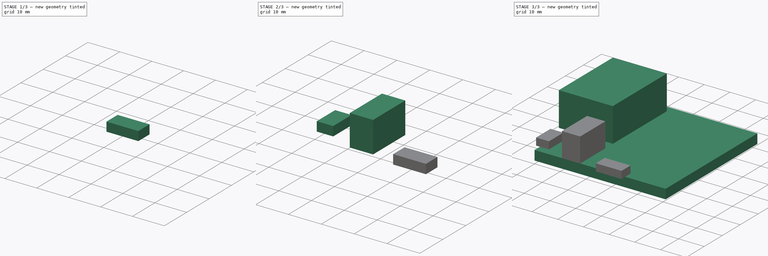
[diagram: build sequence overview — one tinted view per stage of 3, left to right]
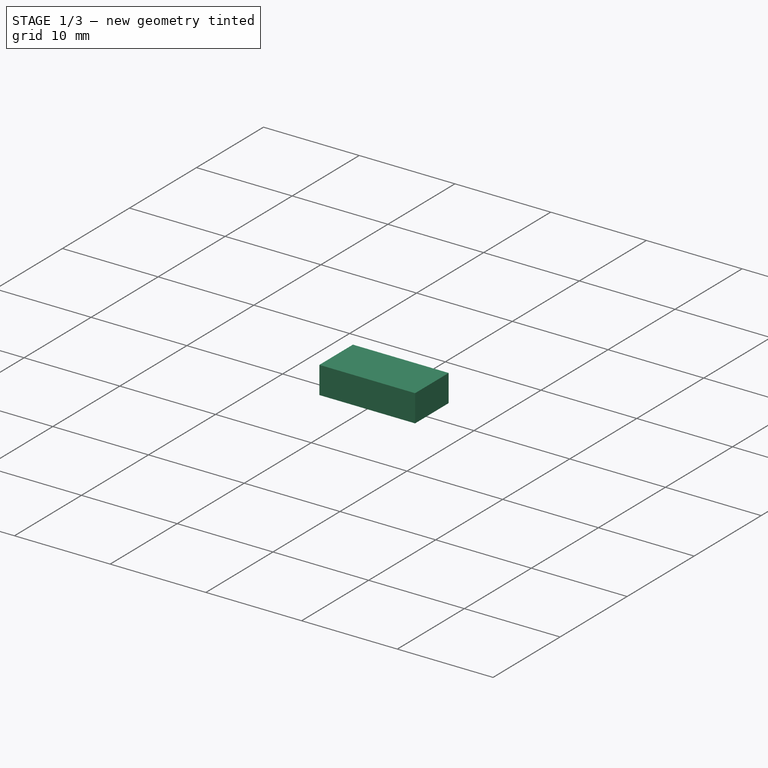
[diagram: stage 1 of 3 — iso view after this stage's code; geometry added in this stage tinted green]
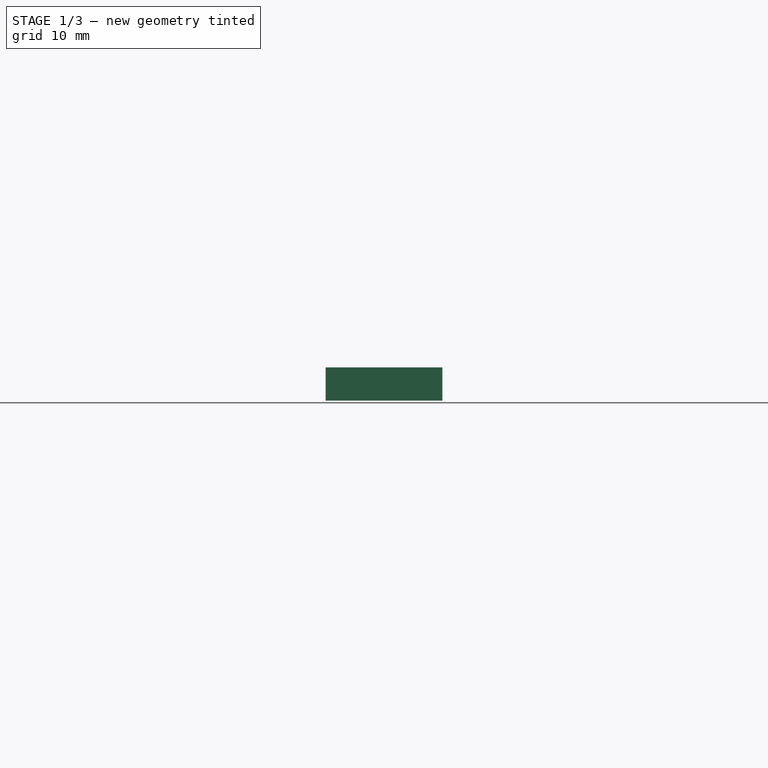
[diagram: stage 1 of 3 — front view after this stage's code; geometry added in this stage tinted green]
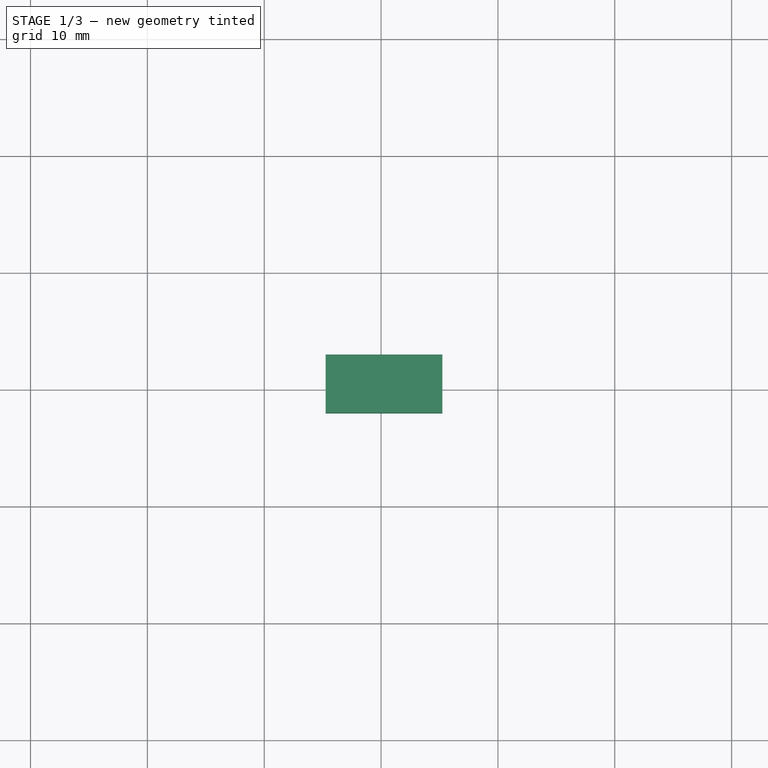
[diagram: stage 1 of 3 — top view after this stage's code; geometry added in this stage tinted green]
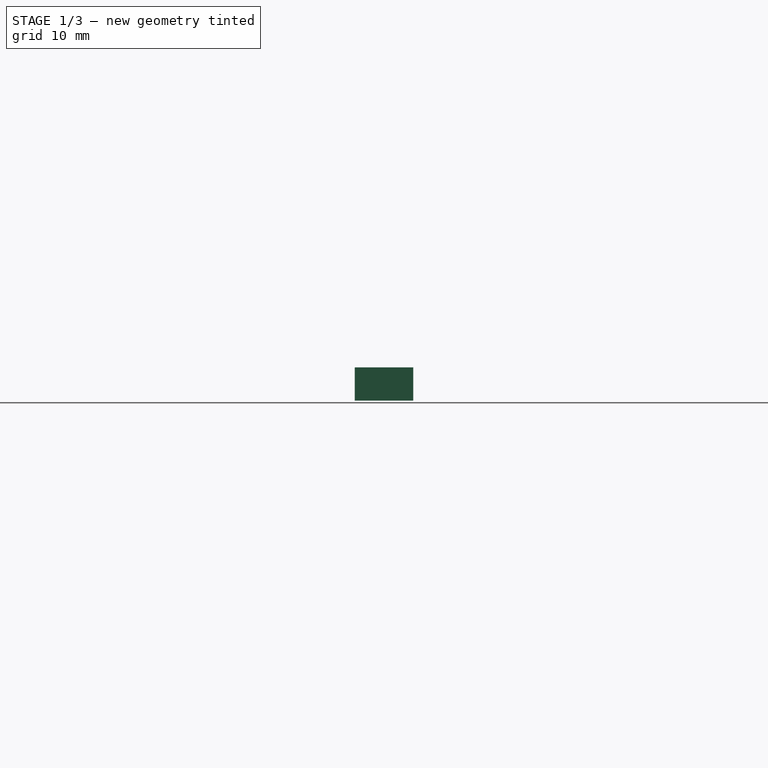
[diagram: stage 1 of 3 — right view after this stage's code; geometry added in this stage tinted green]
FCSTD DOCUMENT  (FreeCAD 0.16RUnknown)
Label: gl-ar150_pcb
License: All rights reserved
LicenseURL: http://en.wikipedia.org/wiki/All_rights_reserved
objects: Sketcher::SketchObject×5, Part::Extrusion×5, Part::MultiFuse×1
note: 11 computed .brp shape members not serialized (recipe doc carries the construction recipe); baked Part::Feature solids carry a one-line shape summary decoded from their .brp

FEATURE [Sketcher::SketchObject] Sketch
  sketch-geometry (4):
    g0: LineSegment StartX=0 StartY=0 StartZ=0 EndX=51 EndY=0 EndZ=0
    g1: LineSegment StartX=51 StartY=0 StartZ=0 EndX=51 EndY=51 EndZ=0
    g2: LineSegment StartX=51 StartY=51 StartZ=0 EndX=0 EndY=51 EndZ=0
    g3: LineSegment StartX=0 StartY=51 StartZ=0 EndX=0 EndY=0 EndZ=0
  constraints (11):
    c: Coincident(g0,g1)
    c: Coincident(g1,g2)
    c: Coincident(g2,g3)
    c: Coincident(g3,g0)
    c: Horizontal(g0)
    c: Horizontal(g2)
    c: Vertical(g1)
    c: Vertical(g3)
    c: Coincident(g0,g-1)
    c: DistanceX(g0,g0) = 51
    c: DistanceY(g3,g3) = 51
FEATURE [Part::Extrusion] Extrude
  Base = -> Sketch
  Dir = (0,0,-3.71)
  Solid = true
FEATURE [Sketcher::SketchObject] Sketch004
  ExternalGeometry = -> [Extrude]
  Support = -> Extrude [Face5]
  sketch-geometry (6):
    g0: LineSegment StartX=25.25 StartY=-2 StartZ=0 EndX=35.25 EndY=-2 EndZ=0
    g1: LineSegment StartX=35.25 StartY=-2 StartZ=0 EndX=35.25 EndY=3 EndZ=0
    g2: LineSegment StartX=35.25 StartY=3 StartZ=0 EndX=25.25 EndY=3 EndZ=0
    g3: LineSegment StartX=25.25 StartY=3 StartZ=0 EndX=25.25 EndY=-2 EndZ=0
    g4: LineSegment [constr] StartX=25.25 StartY=-2 StartZ=0 EndX=25.25 EndY=0 EndZ=0
    g5: LineSegment [constr] StartX=51 StartY=0 StartZ=0 EndX=35.25 EndY=0 EndZ=0
  constraints (18):
    c: Coincident(g0,g1)
    c: Coincident(g1,g2)
    c: Coincident(g2,g3)
    c: Coincident(g3,g0)
    c: Horizontal(g0)
    c: Horizontal(g2)
    c: Vertical(g1)
    c: Vertical(g3)
    c: Coincident(g4,g0)
    c: PointOnObject(g4,g-1)
    c: DistanceY(g4,g4) = 2
    c: Vertical(g4)
    c: DistanceX(g0,g0) = 10
    c: DistanceY(g3,g3) = 5
    c: Coincident(g5,g-3)
    c: PointOnObject(g5,g1)
    c: Horizontal(g5)
    c: DistanceX(g5,g5) = 15.75
FEATURE [Part::Extrusion] Extrude004
  Base = -> Sketch004
  Dir = (0,0,2.85)
  Solid = true
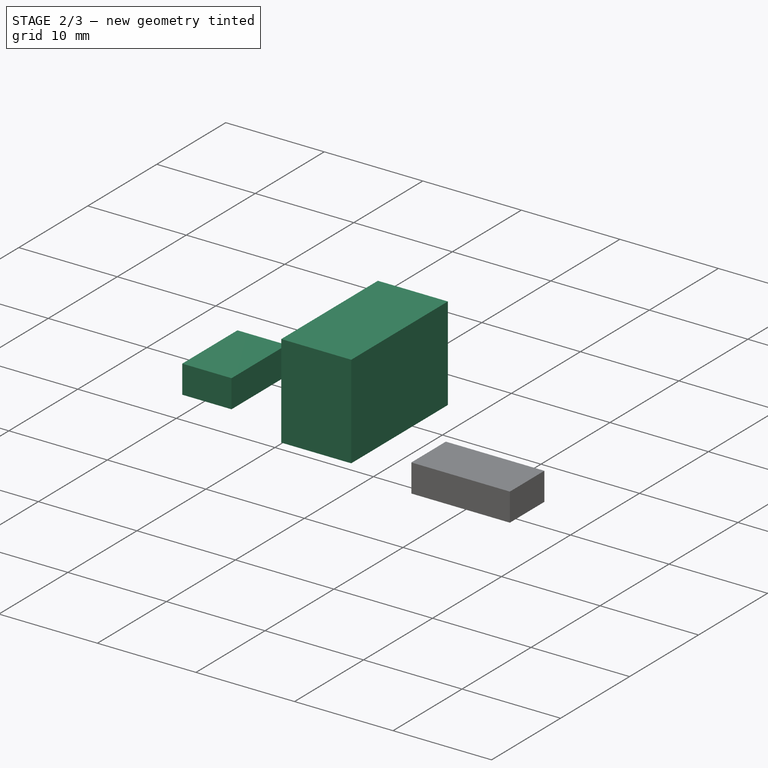
[diagram: stage 2 of 3 — iso view after this stage's code; geometry added in this stage tinted green]
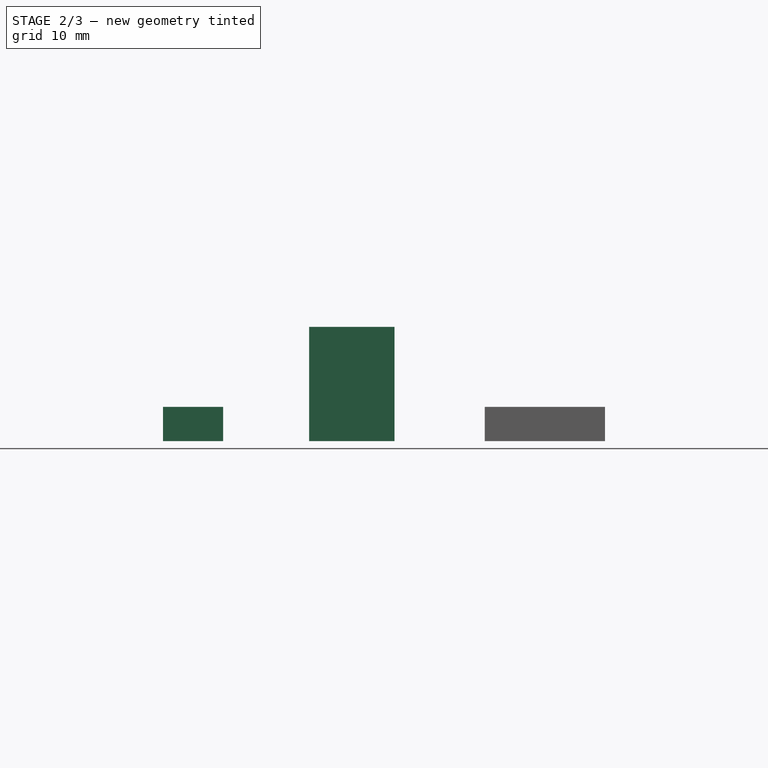
[diagram: stage 2 of 3 — front view after this stage's code; geometry added in this stage tinted green]
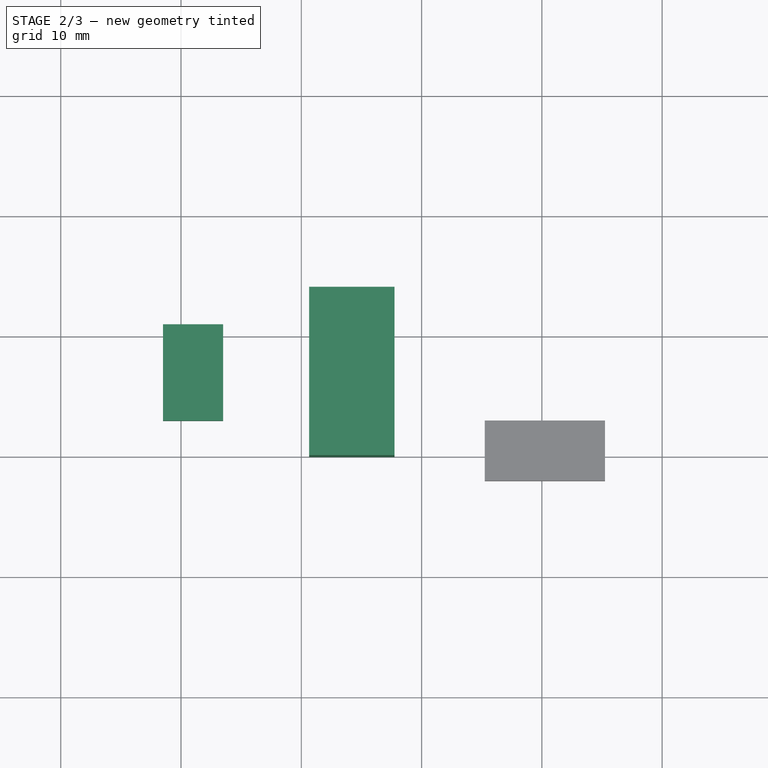
[diagram: stage 2 of 3 — top view after this stage's code; geometry added in this stage tinted green]
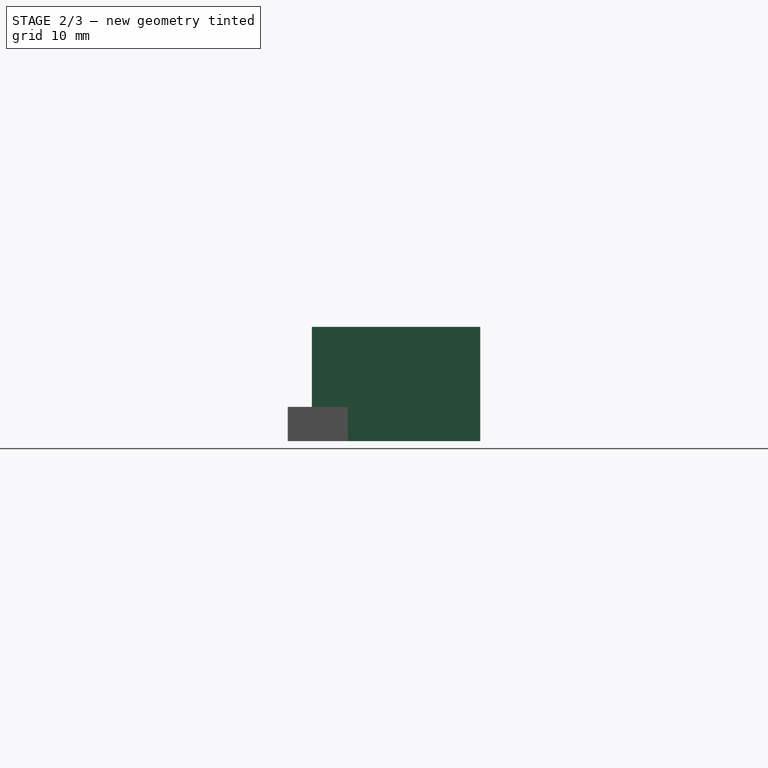
[diagram: stage 2 of 3 — right view after this stage's code; geometry added in this stage tinted green]
FEATURE [Sketcher::SketchObject] Sketch002
  Support = -> Extrude [Face5]
  sketch-geometry (6):
    g0: LineSegment StartX=-1.5 StartY=11 StartZ=0 EndX=3.5 EndY=11 EndZ=0
    g1: LineSegment StartX=3.5 StartY=11 StartZ=0 EndX=3.5 EndY=3 EndZ=0
    g2: LineSegment StartX=3.5 StartY=3 StartZ=0 EndX=-1.5 EndY=3 EndZ=0
    g3: LineSegment StartX=-1.5 StartY=3 StartZ=0 EndX=-1.5 EndY=11 EndZ=0
    g4: LineSegment [constr] StartX=0 StartY=0 StartZ=0 EndX=0 EndY=3 EndZ=0
    g5: LineSegment [constr] StartX=-1.5 StartY=3 StartZ=0 EndX=0 EndY=3 EndZ=0
  constraints (17):
    c: Coincident(g0,g1)
    c: Coincident(g1,g2)
    c: Coincident(g2,g3)
    c: Coincident(g3,g0)
    c: Horizontal(g0)
    c: Horizontal(g2)
    c: Vertical(g1)
    c: Vertical(g3)
    c: DistanceX(g2,g2) = 5
    c: DistanceY(g3,g3) = 8
    c: Coincident(g4,g-1)
    c: DistanceY(g4,g4) = 3
    c: PointOnObject(g4,g2)
    c: Vertical(g4)
    c: Coincident(g5,g2)
    c: DistanceX(g5,g5) = 1.5
    c: Coincident(g5,g4)
FEATURE [Part::Extrusion] Extrude002
  Base = -> Sketch002
  Dir = (0,0,2.85)
  Solid = true
FEATURE [Sketcher::SketchObject] Sketch003
  ExternalGeometry = -> [Extrude]
  Support = -> Extrude [Face5]
  sketch-geometry (4):
    g0: LineSegment StartX=10.6498 StartY=0 StartZ=0 EndX=17.7498 EndY=0 EndZ=0
    g1: LineSegment StartX=17.7498 StartY=0 StartZ=0 EndX=17.7498 EndY=14 EndZ=0
    g2: LineSegment StartX=17.7498 StartY=14 StartZ=0 EndX=10.6498 EndY=14 EndZ=0
    g3: LineSegment StartX=10.6498 StartY=14 StartZ=0 EndX=10.6498 EndY=0 EndZ=0
  constraints (12):
    c: Coincident(g0,g1)
    c: Coincident(g1,g2)
    c: Coincident(g2,g3)
    c: Coincident(g3,g0)
    c: Horizontal(g0)
    c: Horizontal(g2)
    c: Vertical(g1)
    c: Vertical(g3)
    c: PointOnObject(g0,g-3)
    c: DistanceX(g2,g2) = 7.1
    c: DistanceY(g3,g3) = 14
    c: DistanceX(g-1,g0) = 10.6498
FEATURE [Part::Extrusion] Extrude003
  Base = -> Sketch003
  Dir = (0,0,9.5)
  Solid = true
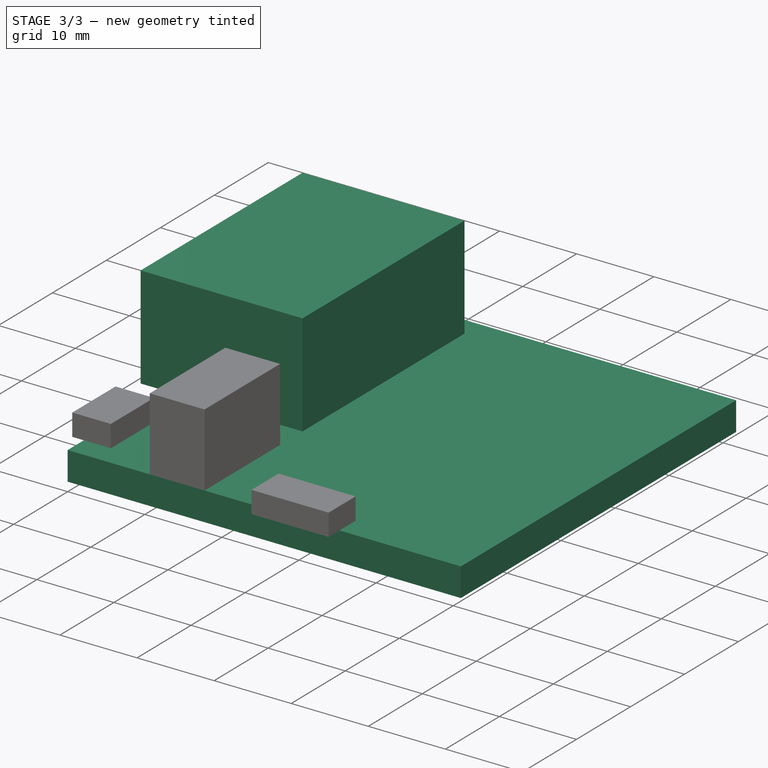
[diagram: stage 3 of 3 — iso view after this stage's code; geometry added in this stage tinted green]
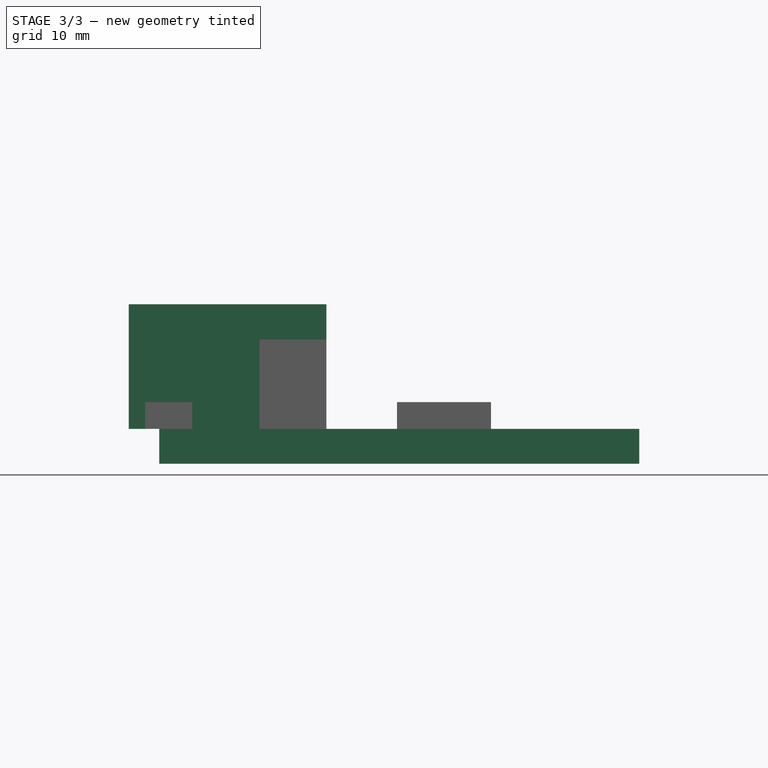
[diagram: stage 3 of 3 — front view after this stage's code; geometry added in this stage tinted green]
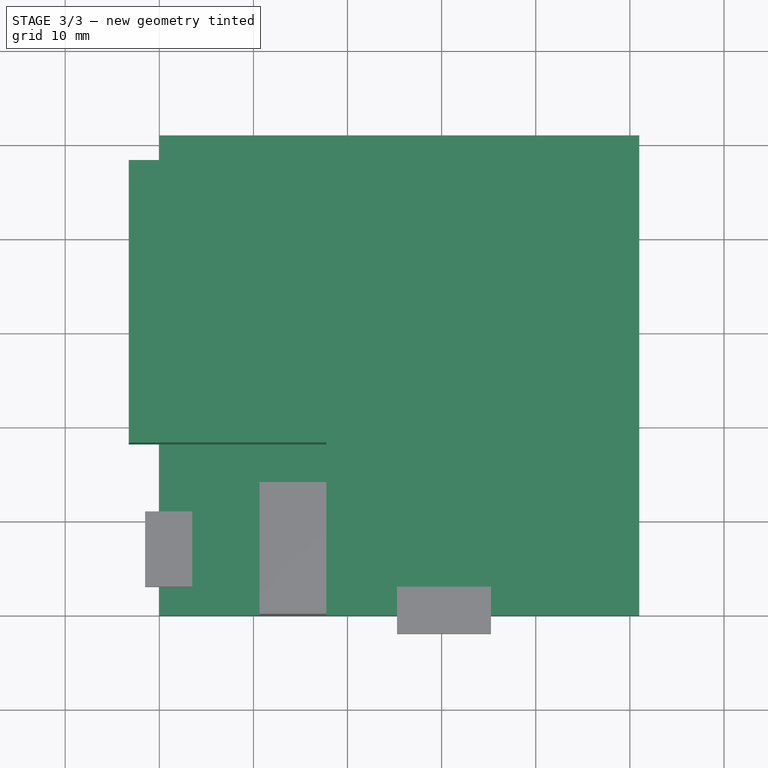
[diagram: stage 3 of 3 — top view after this stage's code; geometry added in this stage tinted green]
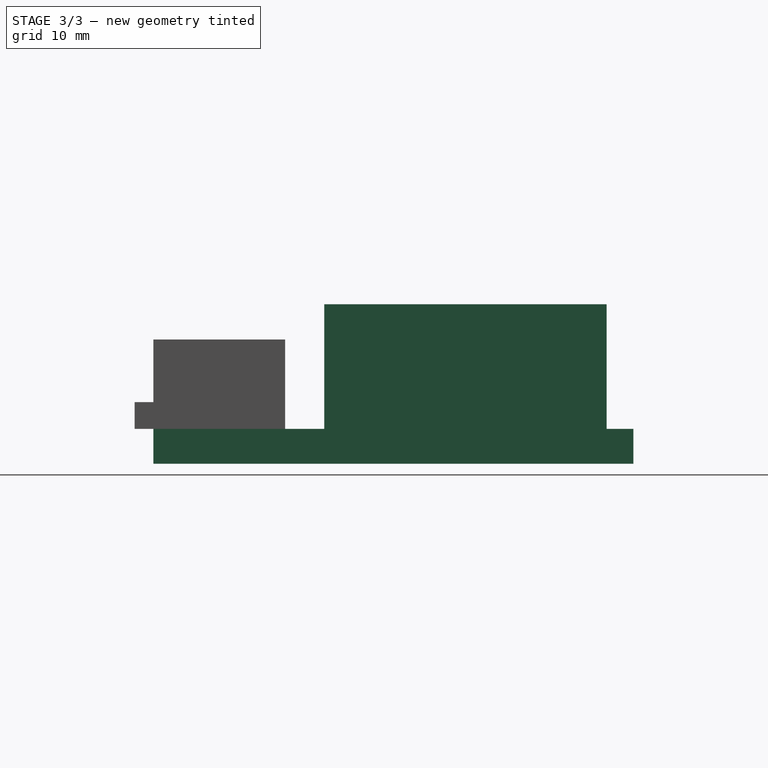
[diagram: stage 3 of 3 — right view after this stage's code; geometry added in this stage tinted green]
FEATURE [Sketcher::SketchObject] Sketch001
  ExternalGeometry = -> [Extrude]
  Support = -> Extrude [Face5]
  sketch-geometry (6):
    g0: LineSegment StartX=-3.25 StartY=48.15 StartZ=0 EndX=17.75 EndY=48.15 EndZ=0
    g1: LineSegment StartX=17.75 StartY=48.15 StartZ=0 EndX=17.75 EndY=18.15 EndZ=0
    g2: LineSegment StartX=17.75 StartY=18.15 StartZ=0 EndX=-3.25 EndY=18.15 EndZ=0
    g3: LineSegment StartX=-3.25 StartY=18.15 StartZ=0 EndX=-3.25 EndY=48.15 EndZ=0
    g4: LineSegment [constr] StartX=0 StartY=51 StartZ=0 EndX=0 EndY=48.15 EndZ=0
    g5: LineSegment [constr] StartX=0 StartY=48.15 StartZ=0 EndX=-3.25 EndY=48.15 EndZ=0
  constraints (17):
    c: Coincident(g0,g1)
    c: Coincident(g1,g2)
    c: Coincident(g2,g3)
    c: Coincident(g3,g0)
    c: Horizontal(g0)
    c: Horizontal(g2)
    c: Vertical(g1)
    c: Vertical(g3)
    c: DistanceX(g0,g0) = 21
    c: DistanceY(g1,g1) = 30
    c: Coincident(g4,g-3)
    c: PointOnObject(g4,g0)
    c: Vertical(g4)
    c: DistanceY(g4,g4) = 2.85
    c: DistanceX(g5,g5) = 3.25
    c: Coincident(g5,g4)
    c: Coincident(g5,g0)
FEATURE [Part::Extrusion] Extrude001
  Base = -> Sketch001
  Dir = (0,0,13.25)
  Solid = true
FEATURE [Part::MultiFuse] Fusion
  Shapes = -> [Extrude,Extrude001,Extrude002,Extrude003,Extrude004]
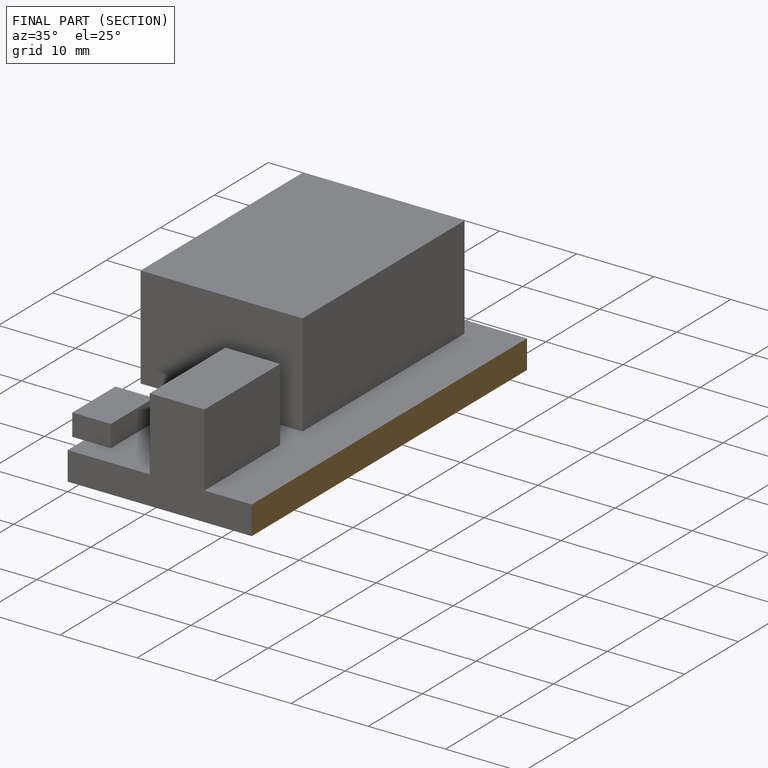
[diagram: finished part — half-section view (interior)]
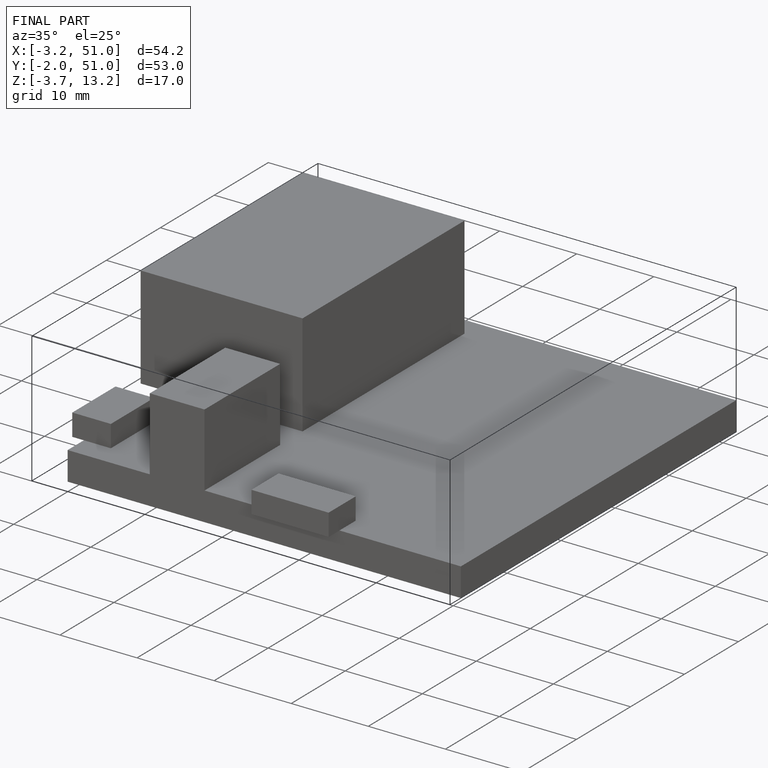
[diagram: finished part — iso view with bounding-box wireframe]
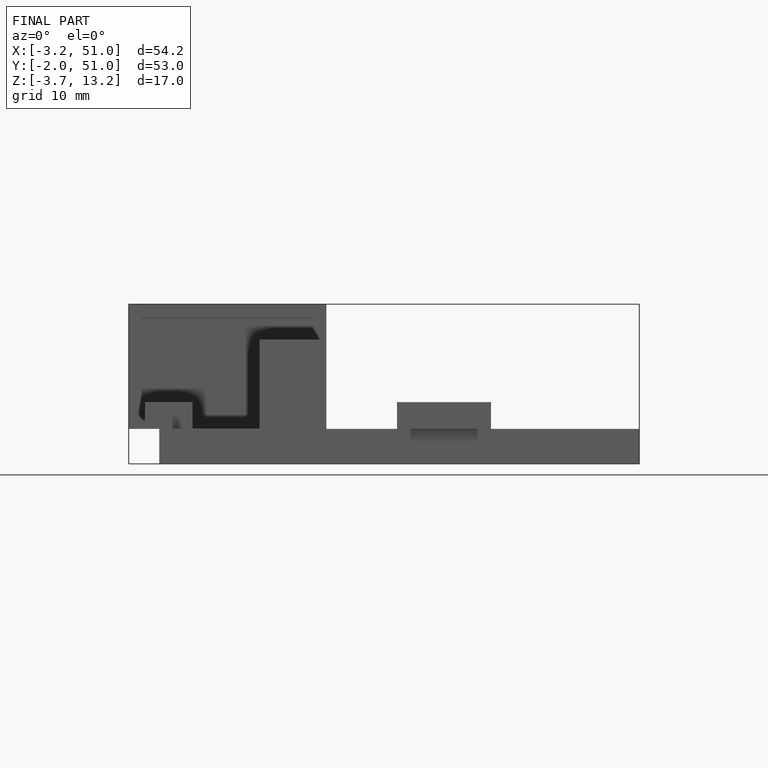
[diagram: finished part — front view with bounding-box wireframe]
